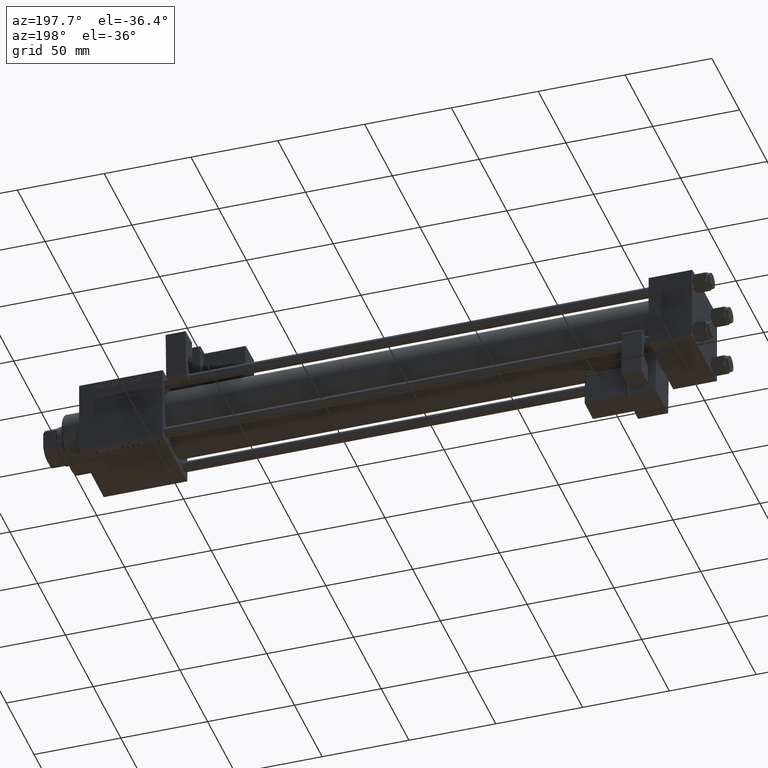
[diagram: clean part render]
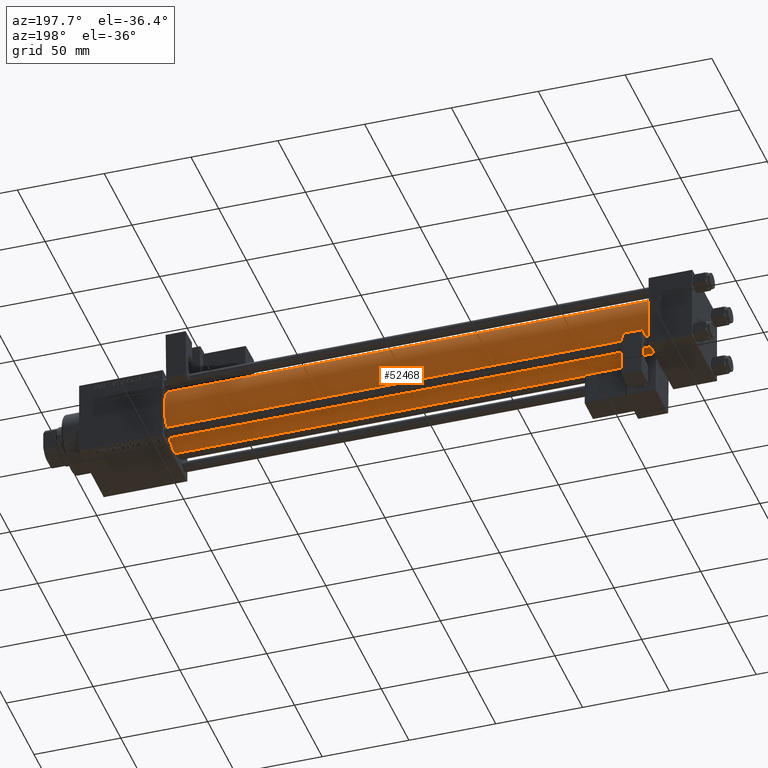
[diagram: same view with one face highlighted and labeled with its STEP entity id]
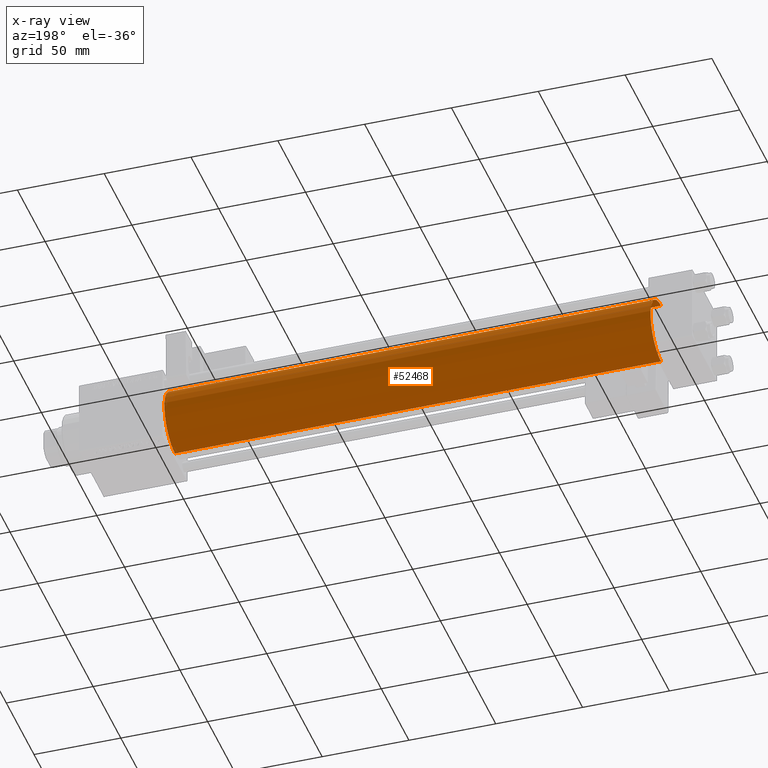
[diagram: x-ray of the same camera — body ghosted, the highlighted face saturated]
A machine part, auxiliary view. The second image highlights one B-rep face of the part: STEP entity #52468.
The next image is the same camera in x-ray: the body ghosted, the highlighted face saturated — about 0% of this face is hidden behind the body in this view.
In plain terms, the highlighted cylindrical surface (edge-blend (fillet) strip) has radius 19 mm, axis along (-1, -0, -0).
Its self-contained STEP definition (entity closure, byte-faithful):
#334 = DIRECTION ( 'NONE',  ( -1.000000000000000000, -0.000000000000000000, -0.000000000000000000 ) ) ;
#1155 = CARTESIAN_POINT ( 'NONE',  ( 305.0000000000000568, -2.602085213965210642E-15, 19.00000000000000000 ) ) ;
#1544 = AXIS2_PLACEMENT_3D ( 'NONE', #38645, #42165, #5201 ) ;
#5201 = DIRECTION ( 'NONE',  ( 0.000000000000000000, 0.000000000000000000, -1.000000000000000000 ) ) ;
#5618 = VECTOR ( 'NONE', #40303, 1000.000000000000000 ) ;
#7176 = VECTOR ( 'NONE', #334, 1000.000000000000000 ) ;
#8225 = VERTEX_POINT ( 'NONE', #19582 ) ;
#9102 = AXIS2_PLACEMENT_3D ( 'NONE', #36679, #49173, #29078 ) ;
#9281 = ORIENTED_EDGE ( 'NONE', *, *, #14603, .T. ) ;
#9816 = EDGE_CURVE ( 'NONE', #10970, #20529, #21011, .T. ) ;
#10508 = VERTEX_POINT ( 'NONE', #30992 ) ;
#10970 = VERTEX_POINT ( 'NONE', #48205 ) ;
#14603 = EDGE_CURVE ( 'NONE', #10508, #8225, #36504, .T. ) ;
#14932 = CARTESIAN_POINT ( 'NONE',  ( 25.00000000000002132, -2.602085213965210642E-15, 19.00000000000000000 ) ) ;
#16276 = CYLINDRICAL_SURFACE ( 'NONE', #9102, 19.00000000000000000 ) ;
#16553 = DIRECTION ( 'NONE',  ( 0.000000000000000000, 0.000000000000000000, 1.000000000000000000 ) ) ;
#19366 = CARTESIAN_POINT ( 'NONE',  ( 305.0000000000000568, -2.752562955852396712E-16, -19.00000000000000000 ) ) ;
#19582 = CARTESIAN_POINT ( 'NONE',  ( 25.00000000000002132, -2.752562955852396712E-16, -19.00000000000000000 ) ) ;
#20529 = VERTEX_POINT ( 'NONE', #14932 ) ;
#20642 = CARTESIAN_POINT ( 'NONE',  ( 25.00000000000002132, -2.602085213965210642E-15, 0.000000000000000000 ) ) ;
#21011 = LINE ( 'NONE', #1155, #7176 ) ;
#24995 = EDGE_CURVE ( 'NONE', #10508, #10970, #27607, .T. ) ;
#27607 = CIRCLE ( 'NONE', #1544, 19.00000000000000000 ) ;
#29078 = DIRECTION ( 'NONE',  ( 0.000000000000000000, 0.000000000000000000, 1.000000000000000000 ) ) ;
#30992 = CARTESIAN_POINT ( 'NONE',  ( 305.0000000000000568, -2.752562955852396712E-16, -19.00000000000000000 ) ) ;
#32757 = ORIENTED_EDGE ( 'NONE', *, *, #53532, .T. ) ;
#36429 = ORIENTED_EDGE ( 'NONE', *, *, #9816, .F. ) ;
#36504 = LINE ( 'NONE', #19366, #5618 ) ;
#36679 = CARTESIAN_POINT ( 'NONE',  ( 305.0000000000000568, -2.602085213965210642E-15, 0.000000000000000000 ) ) ;
#38645 = CARTESIAN_POINT ( 'NONE',  ( 305.0000000000000568, -2.602085213965210642E-15, 0.000000000000000000 ) ) ;
#40303 = DIRECTION ( 'NONE',  ( -1.000000000000000000, -0.000000000000000000, -0.000000000000000000 ) ) ;
#41666 = EDGE_LOOP ( 'NONE', ( #47892, #9281, #32757, #36429 ) ) ;
#42165 = DIRECTION ( 'NONE',  ( 1.000000000000000000, 0.000000000000000000, 0.000000000000000000 ) ) ;
#44770 = AXIS2_PLACEMENT_3D ( 'NONE', #20642, #53786, #16553 ) ;
#47892 = ORIENTED_EDGE ( 'NONE', *, *, #24995, .F. ) ;
#48205 = CARTESIAN_POINT ( 'NONE',  ( 305.0000000000000568, -2.602085213965210642E-15, 19.00000000000000000 ) ) ;
#49173 = DIRECTION ( 'NONE',  ( -1.000000000000000000, -0.000000000000000000, -0.000000000000000000 ) ) ;
#50833 = CIRCLE ( 'NONE', #44770, 19.00000000000000000 ) ;
#52468 = ADVANCED_FACE ( 'NONE', ( #52977 ), #16276, .T. ) ;
#52977 = FACE_OUTER_BOUND ( 'NONE', #41666, .T. ) ;
#53532 = EDGE_CURVE ( 'NONE', #8225, #20529, #50833, .T. ) ;
#53786 = DIRECTION ( 'NONE',  ( 1.000000000000000000, -0.000000000000000000, 0.000000000000000000 ) ) ;